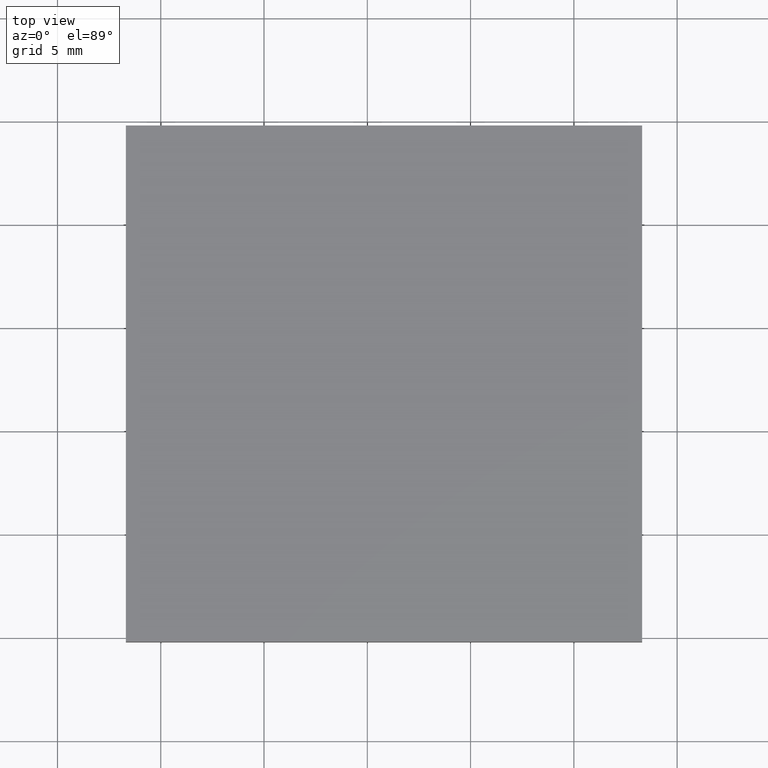
[diagram: clean part render]
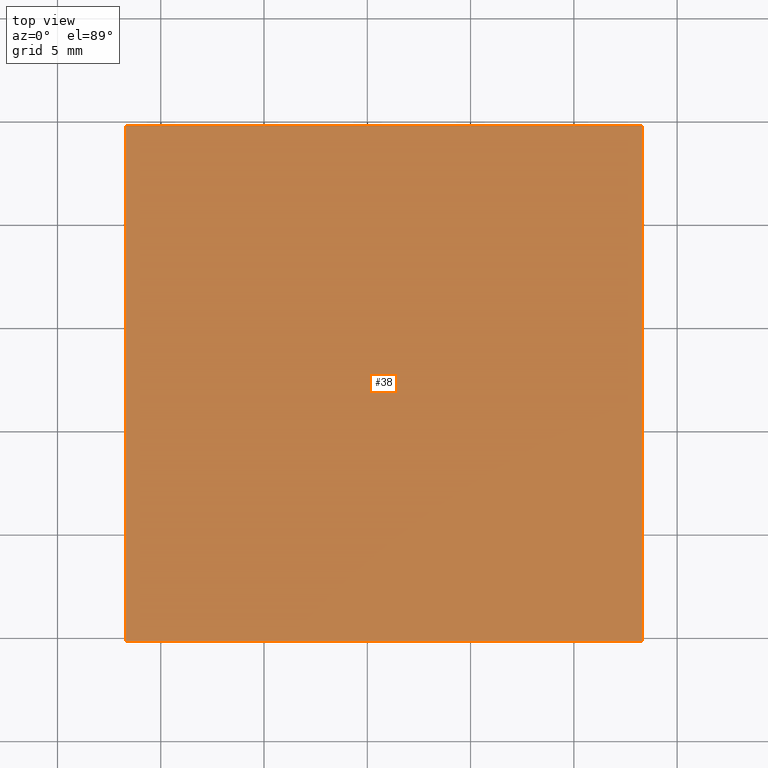
[diagram: same view with one face highlighted and labeled with its STEP entity id]
A machine part, top view. The second image highlights one B-rep face of the part: STEP entity #38.
In plain terms, the highlighted planar face has unit normal (0, 0, -1).
Its self-contained STEP definition (entity closure, byte-faithful):
#2 = LINE ( 'NONE', #12, #66 ) ;
#6 = PLANE ( 'NONE',  #111 ) ;
#7 = CARTESIAN_POINT ( 'NONE',  ( 233.3087717288429700, 64.79317934901541800, 2.000000000000000000 ) ) ;
#8 = CARTESIAN_POINT ( 'NONE',  ( 208.3087717288429400, 89.79317934901541800, 2.000000000000000000 ) ) ;
#12 = CARTESIAN_POINT ( 'NONE',  ( 208.3087717288429400, 64.79317934901541800, 2.000000000000000000 ) ) ;
#22 = LINE ( 'NONE', #8, #180 ) ;
#23 = EDGE_CURVE ( 'NONE', #36, #86, #197, .T. ) ;
#28 = DIRECTION ( 'NONE',  ( 0.0000000000000000000, 0.0000000000000000000, -1.000000000000000000 ) ) ;
#29 = CARTESIAN_POINT ( 'NONE',  ( 233.3087717288429700, 64.79317934901541800, 2.000000000000000000 ) ) ;
#30 = VECTOR ( 'NONE', #55, 1000.000000000000000 ) ;
#34 = CARTESIAN_POINT ( 'NONE',  ( 233.3087717288429700, 89.79317934901541800, 2.000000000000000000 ) ) ;
#36 = VERTEX_POINT ( 'NONE', #136 ) ;
#38 = ADVANCED_FACE ( 'NONE', ( #88 ), #6, .F. ) ;
#44 = ORIENTED_EDGE ( 'NONE', *, *, #75, .T. ) ;
#51 = EDGE_CURVE ( 'NONE', #86, #123, #98, .T. ) ;
#52 = ORIENTED_EDGE ( 'NONE', *, *, #196, .T. ) ;
#54 = CARTESIAN_POINT ( 'NONE',  ( 233.3087717288429700, 89.79317934901541800, 2.000000000000000000 ) ) ;
#55 = DIRECTION ( 'NONE',  ( -0.0000000000000000000, 1.000000000000000000, -0.0000000000000000000 ) ) ;
#66 = VECTOR ( 'NONE', #106, 1000.000000000000000 ) ;
#75 = EDGE_CURVE ( 'NONE', #76, #36, #2, .T. ) ;
#76 = VERTEX_POINT ( 'NONE', #91 ) ;
#79 = EDGE_LOOP ( 'NONE', ( #44, #190, #194, #52 ) ) ;
#86 = VERTEX_POINT ( 'NONE', #29 ) ;
#88 = FACE_OUTER_BOUND ( 'NONE', #79, .T. ) ;
#91 = CARTESIAN_POINT ( 'NONE',  ( 208.3087717288429400, 89.79317934901541800, 2.000000000000000000 ) ) ;
#98 = LINE ( 'NONE', #54, #30 ) ;
#103 = CARTESIAN_POINT ( 'NONE',  ( 0.0000000000000000000, 0.0000000000000000000, 2.000000000000000000 ) ) ;
#106 = DIRECTION ( 'NONE',  ( -0.0000000000000000000, -1.000000000000000000, -0.0000000000000000000 ) ) ;
#111 = AXIS2_PLACEMENT_3D ( 'NONE', #103, #28, #155 ) ;
#123 = VERTEX_POINT ( 'NONE', #34 ) ;
#136 = CARTESIAN_POINT ( 'NONE',  ( 208.3087717288429400, 64.79317934901541800, 2.000000000000000000 ) ) ;
#151 = DIRECTION ( 'NONE',  ( 1.000000000000000000, -0.0000000000000000000, -0.0000000000000000000 ) ) ;
#155 = DIRECTION ( 'NONE',  ( -1.000000000000000000, 0.0000000000000000000, -0.0000000000000000000 ) ) ;
#159 = VECTOR ( 'NONE', #151, 1000.000000000000000 ) ;
#180 = VECTOR ( 'NONE', #188, 1000.000000000000000 ) ;
#188 = DIRECTION ( 'NONE',  ( -1.000000000000000000, -0.0000000000000000000, -0.0000000000000000000 ) ) ;
#190 = ORIENTED_EDGE ( 'NONE', *, *, #23, .T. ) ;
#194 = ORIENTED_EDGE ( 'NONE', *, *, #51, .T. ) ;
#196 = EDGE_CURVE ( 'NONE', #123, #76, #22, .T. ) ;
#197 = LINE ( 'NONE', #7, #159 ) ;